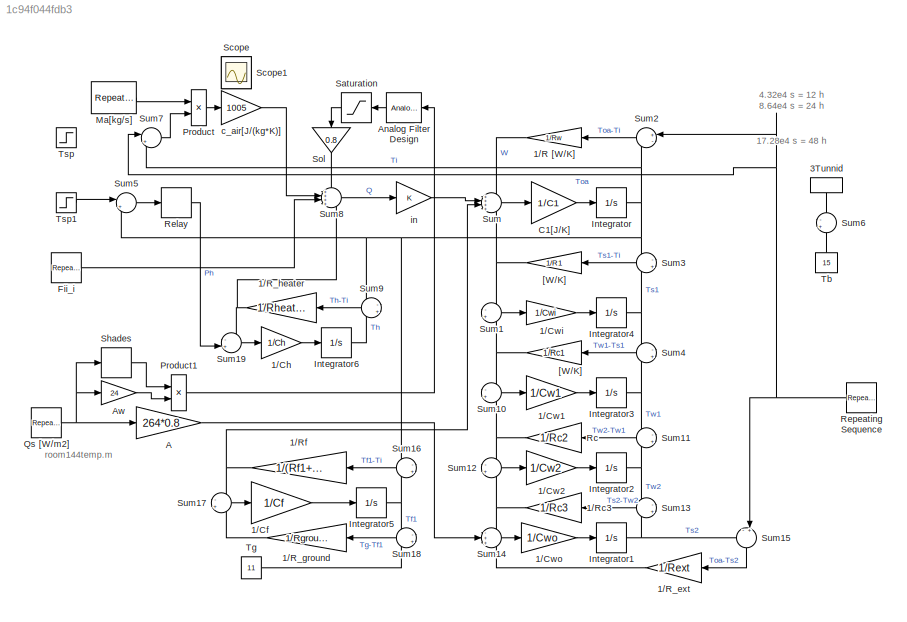
MODEL slx_1c94f044fdb3
KIND model
CONFIG AbsTol = 1e-6
CONFIG EnableMultiTasking = on
CONFIG FixedStep = auto
CONFIG MaxStep = 10
CONFIG MinStep = 0.00000001
CONFIG RelTol = 1e-6
CONFIG SampleTimeConstraint = Unconstrained
CONFIG Solver = ode45
CONFIG SolverName = ode45
CONFIG StartTime = 0.0
CONFIG StopTime = 86400
BLOCK [Gain]  1//R_ext
  Gain = 1/Rext
  OutDataTypeStr = Inherit: Inherit via internal rule
  ParamDataTypeStr = Inherit: Inherit via internal rule
  SaturateOnIntegerOverflow = off
BLOCK [Gain]  1//R_ground
  Gain = 1/Rground
  OutDataTypeStr = Inherit: Inherit via internal rule
  ParamDataTypeStr = Inherit: Inherit via internal rule
  SaturateOnIntegerOverflow = off
BLOCK [Gain]  1//R_heater
  Gain = 1/Rheater
  OutDataTypeStr = Inherit: Inherit via internal rule
  ParamDataTypeStr = Inherit: Inherit via internal rule
  SaturateOnIntegerOverflow = off
BLOCK [Gain]  1//Rc3
  Gain = 1/Rc3
  OutDataTypeStr = Inherit: Inherit via internal rule
  ParamDataTypeStr = Inherit: Inherit via internal rule
  SaturateOnIntegerOverflow = off
BLOCK [Gain]  1//Rf
  Gain = 1/(Rf1+Rf2)
  OutDataTypeStr = Inherit: Inherit via internal rule
  ParamDataTypeStr = Inherit: Inherit via internal rule
  SaturateOnIntegerOverflow = off
BLOCK [Gain]  Rc
  Gain = 1/Rc2
  OutDataTypeStr = Inherit: Inherit via internal rule
  ParamDataTypeStr = Inherit: Inherit via internal rule
  SaturateOnIntegerOverflow = off
BLOCK [Gain]  [W//K]
  Gain = 1/Rc1
  OutDataTypeStr = Inherit: Inherit via internal rule
  ParamDataTypeStr = Inherit: Inherit via internal rule
  SaturateOnIntegerOverflow = off
BLOCK [Gain] 1//Cf
  Gain = 1/Cf
  OutDataTypeStr = Inherit: Inherit via internal rule
  ParamDataTypeStr = Inherit: Inherit via internal rule
  SaturateOnIntegerOverflow = off
BLOCK [Gain] 1//Ch
  Gain = 1/Ch
  OutDataTypeStr = Inherit: Inherit via internal rule
  ParamDataTypeStr = Inherit: Inherit via internal rule
  SaturateOnIntegerOverflow = off
BLOCK [Gain] 1//Cw1
  Gain = 1/Cw1
  OutDataTypeStr = Inherit: Inherit via internal rule
  ParamDataTypeStr = Inherit: Inherit via internal rule
  SaturateOnIntegerOverflow = off
BLOCK [Gain] 1//Cw2
  Gain = 1/Cw2
  OutDataTypeStr = Inherit: Inherit via internal rule
  ParamDataTypeStr = Inherit: Inherit via internal rule
  SaturateOnIntegerOverflow = off
BLOCK [Gain] 1//Cwi
  Gain = 1/Cwi
  OutDataTypeStr = Inherit: Inherit via internal rule
  ParamDataTypeStr = Inherit: Inherit via internal rule
  SaturateOnIntegerOverflow = off
BLOCK [Gain] 1//Cwo
  Gain = 1/Cwo
  OutDataTypeStr = Inherit: Inherit via internal rule
  ParamDataTypeStr = Inherit: Inherit via internal rule
  SaturateOnIntegerOverflow = off
BLOCK [Gain] 1//R [W//K]
  Gain = 1/Rw
  OutDataTypeStr = Inherit: Inherit via internal rule
  ParamDataTypeStr = Inherit: Inherit via internal rule
  SaturateOnIntegerOverflow = off
BLOCK [DiscretePulseGenerator] 3Tunnid
  Amplitude = -1
  Period = 3600*3
  Ports = [0, 1]
  PulseType = Time based
  PulseWidth = 0.01
BLOCK [Gain] A
  Gain = 264*0.8
  OutDataTypeStr = Inherit: Inherit via internal rule
  ParamDataTypeStr = Inherit: Inherit via internal rule
  SaturateOnIntegerOverflow = off
BLOCK [Reference] Analog Filter Design  REF=dsparch4/Analog
Filter Design
  Ports = [1, 1]
  SourceBlock = dsparch4/Analog\nFilter Design
  SourceProductBaseCode = DS
  SourceProductName = DSP System Toolbox
  SourceType = Analog Filter Design
BLOCK [Gain] Aw
  Gain = 24
  OutDataTypeStr = Inherit: Inherit via internal rule
  ParamDataTypeStr = Inherit: Inherit via internal rule
  SaturateOnIntegerOverflow = off
BLOCK [Gain] C1[J//K]
  Gain = 1/C1
  OutDataTypeStr = Inherit: Inherit via internal rule
  ParamDataTypeStr = Inherit: Inherit via internal rule
  SaturateOnIntegerOverflow = off
BLOCK [Reference] Fii_i  REF=simulink/Sources/Repeating
Sequence
  Ports = [0, 1]
  SourceBlock = simulink/Sources/Repeating\nSequence
  SourceProductBaseCode = SL
  SourceProductName = Simulink
  SourceType = Repeating table
BLOCK [Integrator] Integrator
  InitialCondition = 15.5
  Ports = [1, 1]
BLOCK [Integrator] Integrator1
  InitialCondition = 11
  Ports = [1, 1]
BLOCK [Integrator] Integrator2
  InitialCondition = 12
  Ports = [1, 1]
BLOCK [Integrator] Integrator3
  InitialCondition = 13
  Ports = [1, 1]
BLOCK [Integrator] Integrator4
  InitialCondition = 15
  Ports = [1, 1]
BLOCK [Integrator] Integrator5
  InitialCondition = 12
  Ports = [1, 1]
BLOCK [Integrator] Integrator6
  InitialCondition = 15.5
  Ports = [1, 1]
BLOCK [Reference] Ma[kg//s]  REF=simulink/Sources/Repeating
Sequence
  Ports = [0, 1]
  SourceBlock = simulink/Sources/Repeating\nSequence
  SourceProductBaseCode = SL
  SourceProductName = Simulink
  SourceType = Repeating table
BLOCK [Product] Product
  InputSameDT = off
  OutDataTypeStr = Inherit: Inherit via internal rule
  Ports = [2, 1]
  SaturateOnIntegerOverflow = off
BLOCK [Product] Product1
  InputSameDT = off
  OutDataTypeStr = Inherit: Inherit via internal rule
  Ports = [2, 1]
  SaturateOnIntegerOverflow = off
BLOCK [Reference] Qs [W//m2]  REF=simulink/Sources/Repeating
Sequence
  Ports = [0, 1]
  SourceBlock = simulink/Sources/Repeating\nSequence
  SourceProductBaseCode = SL
  SourceProductName = Simulink
  SourceType = Repeating table
BLOCK [Relay] Relay
  OffSwitchValue = -0.5
  OnOutputValue = 8000
  OnSwitchValue = 0.5
BLOCK [Reference] Repeating Sequence  REF=simulink/Sources/Repeating
Sequence
  Ports = [0, 1]
  SourceBlock = simulink/Sources/Repeating\nSequence
  SourceProductBaseCode = SL
  SourceProductName = Simulink
  SourceType = Repeating table
BLOCK [Saturate] Saturation
  InputPortMap = u0
  LowerLimit = 0
  Ports = [1, 1]
  UpperLimit = 4000
BLOCK [Scope] Scope
  IOType = viewer
  NumInputPorts = 1
  Ports = []
  ScopeSpecificationString = Simulink.scopes.TimeScopeBlockCfg('CurrentConfiguration', extmgr.ConfigurationSet(extmgr.Configuration('Core','General UI',true),extmgr.Configuration('Core','Source UI',true),extmgr.Configuration('Sources','WiredSimulink',true),extmgr.Configuration('Visuals','Time Domain',true,'SerializedDisplays',{struct('MinYLimReal','8.59173','MaxYLimReal','22.67529','YLabelReal','','MinYLimMag','9.25009','MaxY...<+3732ch>
BLOCK [Scope] Scope1
  IOType = viewer
  NumInputPorts = 1
  Ports = []
  ScopeSpecificationString = Simulink.scopes.TimeScopeBlockCfg('CurrentConfiguration', extmgr.ConfigurationSet(extmgr.Configuration('Core','General UI',true),extmgr.Configuration('Core','Source UI',true),extmgr.Configuration('Sources','WiredSimulink',true,'DataLoggingVariableName','ScopeData1'),extmgr.Configuration('Visuals','Time Domain',true,'SerializedDisplays',{struct('MinYLimReal','-450.00000','MaxYLimReal','4050.00000',...<+1741ch>
BLOCK [Relay] Shades
  OffOutputValue = 1
  OffSwitchValue = 130
  OnOutputValue = 0
  OnSwitchValue = 150
BLOCK [Gain] Sol
  Gain = 0.8
  OutDataTypeStr = Inherit: Inherit via internal rule
  ParamDataTypeStr = Inherit: Inherit via internal rule
  SaturateOnIntegerOverflow = off
BLOCK [Sum] Sum
  IconShape = round
  InputSameDT = off
  Inputs = ++++
  OutDataTypeStr = Inherit: Inherit via internal rule
  Ports = [4, 1]
  SaturateOnIntegerOverflow = off
BLOCK [Sum] Sum1
  IconShape = round
  InputSameDT = off
  Inputs = -+
  OutDataTypeStr = Inherit: Inherit via internal rule
  Ports = [2, 1]
  SaturateOnIntegerOverflow = off
BLOCK [Sum] Sum10
  IconShape = round
  InputSameDT = off
  Inputs = -+
  OutDataTypeStr = Inherit: Inherit via internal rule
  Ports = [2, 1]
  SaturateOnIntegerOverflow = off
BLOCK [Sum] Sum11
  IconShape = round
  InputSameDT = off
  Inputs = -+
  OutDataTypeStr = Inherit: Inherit via internal rule
  Ports = [2, 1]
  SaturateOnIntegerOverflow = off
BLOCK [Sum] Sum12
  IconShape = round
  InputSameDT = off
  Inputs = -+
  OutDataTypeStr = Inherit: Inherit via internal rule
  Ports = [2, 1]
  SaturateOnIntegerOverflow = off
BLOCK [Sum] Sum13
  IconShape = round
  InputSameDT = off
  Inputs = -+
  OutDataTypeStr = Inherit: Inherit via internal rule
  Ports = [2, 1]
  SaturateOnIntegerOverflow = off
BLOCK [Sum] Sum14
  IconShape = round
  InputSameDT = off
  Inputs = -++
  OutDataTypeStr = Inherit: Inherit via internal rule
  Ports = [3, 1]
  SaturateOnIntegerOverflow = off
BLOCK [Sum] Sum15
  IconShape = round
  InputSameDT = off
  Inputs = -+
  OutDataTypeStr = Inherit: Inherit via internal rule
  Ports = [2, 1]
  SaturateOnIntegerOverflow = off
BLOCK [Sum] Sum16
  IconShape = round
  InputSameDT = off
  Inputs = -+
  OutDataTypeStr = Inherit: Inherit via internal rule
  Ports = [2, 1]
  SaturateOnIntegerOverflow = off
BLOCK [Sum] Sum17
  IconShape = round
  InputSameDT = off
  Inputs = -+
  OutDataTypeStr = Inherit: Inherit via internal rule
  Ports = [2, 1]
  SaturateOnIntegerOverflow = off
BLOCK [Sum] Sum18
  IconShape = round
  InputSameDT = off
  Inputs = -+
  OutDataTypeStr = Inherit: Inherit via internal rule
  Ports = [2, 1]
  SaturateOnIntegerOverflow = off
BLOCK [Sum] Sum19
  IconShape = round
  InputSameDT = off
  Inputs = -+|
  OutDataTypeStr = Inherit: Inherit via internal rule
  Ports = [2, 1]
  SaturateOnIntegerOverflow = off
BLOCK [Sum] Sum2
  IconShape = round
  InputSameDT = off
  Inputs = +-
  OutDataTypeStr = Inherit: Inherit via internal rule
  Ports = [2, 1]
  SaturateOnIntegerOverflow = off
BLOCK [Sum] Sum3
  IconShape = round
  InputSameDT = off
  Inputs = -+
  OutDataTypeStr = Inherit: Inherit via internal rule
  Ports = [2, 1]
  SaturateOnIntegerOverflow = off
BLOCK [Sum] Sum4
  IconShape = round
  InputSameDT = off
  Inputs = -+
  OutDataTypeStr = Inherit: Inherit via internal rule
  Ports = [2, 1]
  SaturateOnIntegerOverflow = off
BLOCK [Sum] Sum5
  IconShape = round
  InputSameDT = off
  Inputs = |+-
  OutDataTypeStr = Inherit: Inherit via internal rule
  Ports = [2, 1]
  SaturateOnIntegerOverflow = off
BLOCK [Sum] Sum6
  IconShape = round
  InputSameDT = off
  Inputs = -+
  OutDataTypeStr = Inherit: Inherit via internal rule
  Ports = [2, 1]
  SaturateOnIntegerOverflow = off
BLOCK [Sum] Sum7
  IconShape = round
  InputSameDT = off
  Inputs = |+-
  OutDataTypeStr = Inherit: Inherit via internal rule
  Ports = [2, 1]
  SaturateOnIntegerOverflow = off
BLOCK [Sum] Sum8
  IconShape = round
  InputSameDT = off
  Inputs = ++++
  OutDataTypeStr = Inherit: Inherit via internal rule
  Ports = [4, 1]
  SaturateOnIntegerOverflow = off
BLOCK [Sum] Sum9
  IconShape = round
  InputSameDT = off
  Inputs = -+
  OutDataTypeStr = Inherit: Inherit via internal rule
  Ports = [2, 1]
  SaturateOnIntegerOverflow = off
BLOCK [Constant] Tb
  Value = 15
BLOCK [Constant] Tg
  Value = 11
BLOCK [Step] Tsp
  After = 15
  Before = 11
  SampleTime = 0
  Time = 12*3600
BLOCK [Step] Tsp1
  After = 0
  SampleTime = 0
  Time = 8*3600
BLOCK [Gain] [W//K]
  Gain = 1/R1
  OutDataTypeStr = Inherit: Inherit via internal rule
  ParamDataTypeStr = Inherit: Inherit via internal rule
  SaturateOnIntegerOverflow = off
BLOCK [Gain] c_air[J//(kg*K)]
  Gain = 1005
  OutDataTypeStr = Inherit: Inherit via internal rule
  ParamDataTypeStr = Inherit: Inherit via internal rule
  SaturateOnIntegerOverflow = off
BLOCK [Gain] in
  OutDataTypeStr = Inherit: Inherit via internal rule
  ParamDataTypeStr = Inherit: Inherit via internal rule
  SaturateOnIntegerOverflow = off
ANNOTATION (root): 4.32e4 s = 12 h 8.64e4 s = 24 h 17.28e4 s = 48 h
ANNOTATION (root): room144temp.m
LINE  1//R_ext:1 -> Sum14:3
LINE  1//R_ground:1 -> Sum17:2
NET  1//R_heater:1 -> Sum19:1, Sum8:4
NET  1//Rc3:1 -> Sum12:2, Sum14:1
NET  1//Rf:1 -> Sum17:1, Sum:3
NET  Rc:1 -> Sum10:2, Sum12:1
NET  [W//K]:1 -> Sum10:1, Sum1:2
LINE 1//Cf:1 -> Integrator5:1
LINE 1//Ch:1 -> Integrator6:1
LINE 1//Cw1:1 -> Integrator3:1
LINE 1//Cw2:1 -> Integrator2:1
LINE 1//Cwi:1 -> Integrator4:1
LINE 1//Cwo:1 -> Integrator1:1
LINE 1//R [W//K]:1 -> Sum:1
LINE 3Tunnid:1 -> Sum6:1
LINE A:1 -> Sum14:2
LINE Analog Filter Design:1 -> Saturation:1
LINE Aw:1 -> Product1:2
LINE C1[J//K]:1 -> Integrator:1
LINE Fii_i:1 -> Sum8:3
NET Integrator1:1 -> Sum13:2, Sum15:1
NET Integrator2:1 -> Sum11:2, Sum13:1
NET Integrator3:1 -> Sum11:1, Sum4:2
NET Integrator4:1 -> Sum3:2, Sum4:1
NET Integrator5:1 -> Sum16:2, Sum18:1
LINE Integrator6:1 -> Sum9:2
NET Integrator:1 -> Sum16:1, Sum2:2, Sum3:1, Sum5:2, Sum7:2, Sum9:1
LINE Ma[kg//s]:1 -> Product:1
LINE Product1:1 -> Analog Filter Design:1
LINE Product:1 -> c_air[J//(kg*K)]:1
NET Qs [W//m2]:1 -> A:1, Aw:1, Shades:1
LINE Relay:1 -> Sum19:2
NET Repeating Sequence:1 -> Sum15:2, Sum2:1, Sum7:1
LINE Saturation:1 -> Sol:1
LINE Shades:1 -> Product1:1
LINE Sol:1 -> Sum8:1
LINE Sum10:1 -> 1//Cw1:1
LINE Sum11:1 ->  Rc:1
LINE Sum12:1 -> 1//Cw2:1
LINE Sum13:1 ->  1//Rc3:1
LINE Sum14:1 -> 1//Cwo:1
LINE Sum15:1 ->  1//R_ext:1
LINE Sum16:1 ->  1//Rf:1
LINE Sum17:1 -> 1//Cf:1
LINE Sum18:1 ->  1//R_ground:1
LINE Sum19:1 -> 1//Ch:1
LINE Sum1:1 -> 1//Cwi:1
LINE Sum2:1 -> 1//R [W//K]:1
LINE Sum3:1 -> [W//K]:1
LINE Sum4:1 ->  [W//K]:1
LINE Sum5:1 -> Relay:1
LINE Sum7:1 -> Product:2
LINE Sum8:1 -> in:1
LINE Sum9:1 ->  1//R_heater:1
LINE Sum:1 -> C1[J//K]:1
LINE Tb:1 -> Sum6:2
LINE Tg:1 -> Sum18:2
LINE Tsp1:1 -> Sum5:1
NET [W//K]:1 -> Sum1:1, Sum:4
LINE c_air[J//(kg*K)]:1 -> Sum8:2
LINE in:1 -> Sum:2
note: NET lines group one-source signal fan-out (src -> all destinations, sorted); 1:1 wires keep LINE
